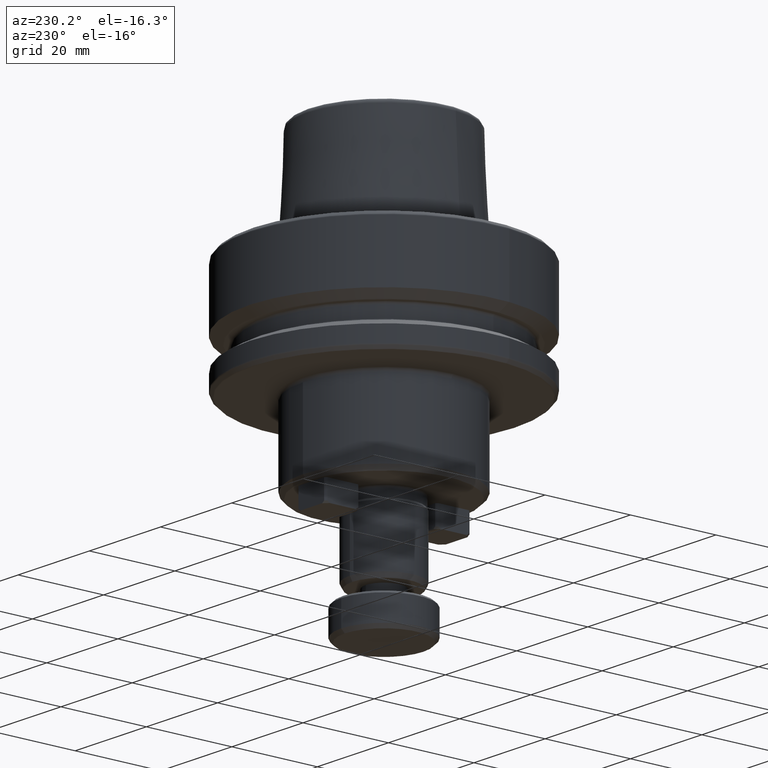
[diagram: clean part render]
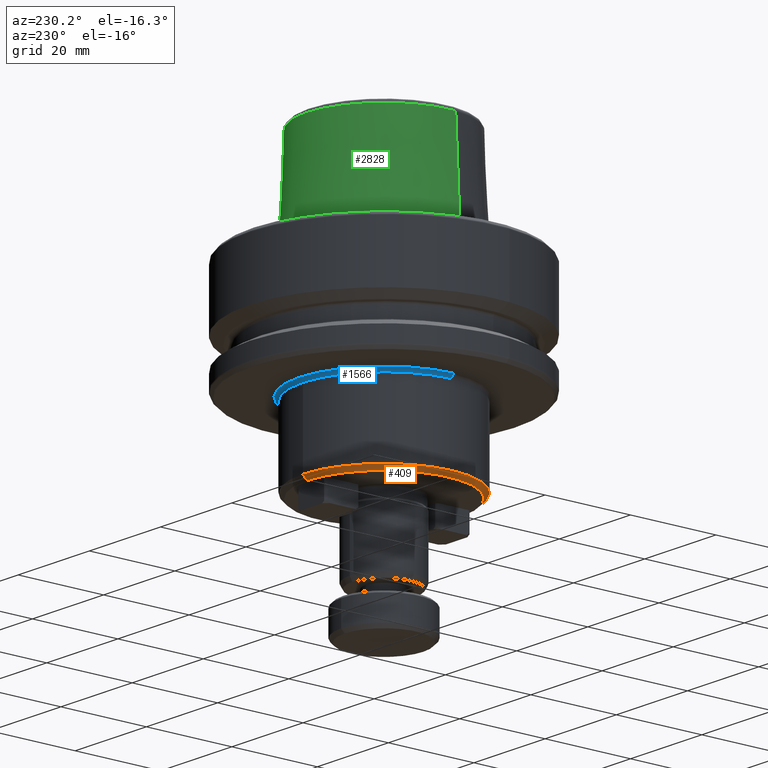
[diagram: same view with three faces highlighted in distinct colors, each labeled with its STEP entity id]
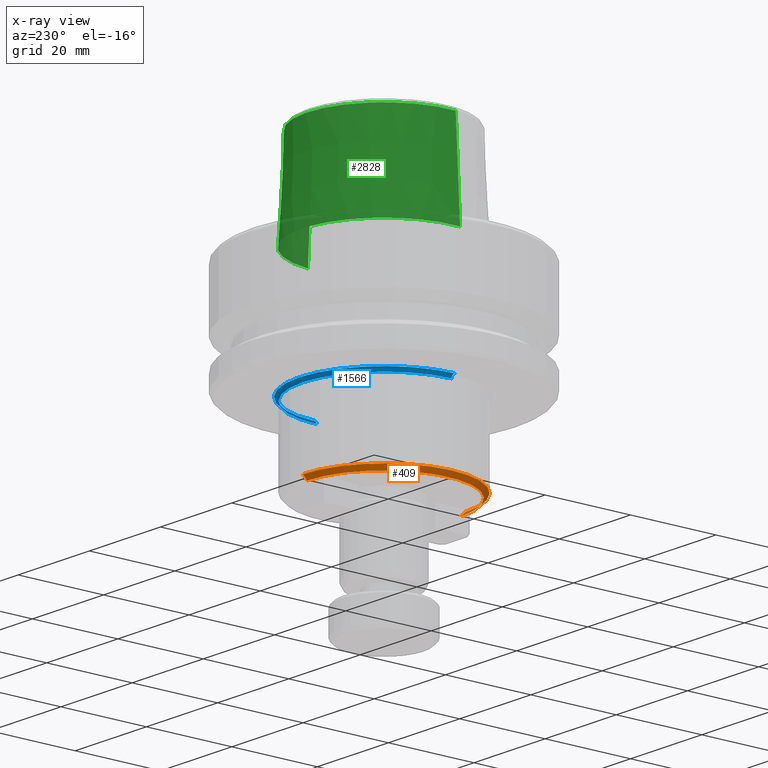
[diagram: x-ray of the same camera — body ghosted, the three highlighted faces saturated]
A machine part, auxiliary view with three faces highlighted in distinct colors.
The next image is the same camera in x-ray (body ghosted, the three faces saturated) — at least one of them is partly hidden behind the body in this view.
Their STEP definitions:

[orange] entity #409 — the highlighted conical surface has half-angle 45 deg.
#40 = DIRECTION ( 'NONE',  ( -0.0000000000000000000, -1.870988165364012400E-016, -1.000000000000000000 ) ) ;
#54 = ORIENTED_EDGE ( 'NONE', *, *, #2348, .F. ) ;
#124 = LINE ( 'NONE', #1850, #2440 ) ;
#357 = EDGE_CURVE ( 'NONE', #2397, #408, #645, .T. ) ;
#408 = VERTEX_POINT ( 'NONE', #2042 ) ;
#409 = ADVANCED_FACE ( 'NONE', ( #967 ), #1263, .T. ) ;
#410 = CIRCLE ( 'NONE', #737, 19.00000000000000700 ) ;
#496 = DIRECTION ( 'NONE',  ( 8.659560562354888500E-017, 0.7071067811865440200, 0.7071067811865511300 ) ) ;
#507 = EDGE_LOOP ( 'NONE', ( #54, #1658, #724, #1513 ) ) ;
#582 = CARTESIAN_POINT ( 'NONE',  ( -23.61709746719497700, 15.38612400801684800, 18.23824922329686200 ) ) ;
#645 = LINE ( 'NONE', #2778, #1324 ) ;
#658 = VERTEX_POINT ( 'NONE', #2298 ) ;
#724 = ORIENTED_EDGE ( 'NONE', *, *, #357, .T. ) ;
#737 = AXIS2_PLACEMENT_3D ( 'NONE', #1402, #40, #1623 ) ;
#792 = DIRECTION ( 'NONE',  ( 0.0000000000000000000, -1.000000000000000000, 1.927470528863118600E-016 ) ) ;
#892 = DIRECTION ( 'NONE',  ( -0.0000000000000000000, -1.870988165364012400E-016, -1.000000000000000000 ) ) ;
#967 = FACE_OUTER_BOUND ( 'NONE', #507, .T. ) ;
#1204 = EDGE_CURVE ( 'NONE', #408, #658, #410, .T. ) ;
#1263 = CONICAL_SURFACE ( 'NONE', #2149, 18.00000000000000400, 0.7853981633974430600 ) ;
#1324 = VECTOR ( 'NONE', #2489, 1000.000000000000000 ) ;
#1402 = CARTESIAN_POINT ( 'NONE',  ( -23.61709746719498100, -2.613875991983153600, 19.23824922329687900 ) ) ;
#1464 = VERTEX_POINT ( 'NONE', #582 ) ;
#1512 = CIRCLE ( 'NONE', #1893, 18.00000000000000400 ) ;
#1513 = ORIENTED_EDGE ( 'NONE', *, *, #1204, .T. ) ;
#1617 = EDGE_CURVE ( 'NONE', #2397, #1464, #1512, .T. ) ;
#1623 = DIRECTION ( 'NONE',  ( 0.0000000000000000000, 1.000000000000000000, -1.826024711554533200E-016 ) ) ;
#1652 = CARTESIAN_POINT ( 'NONE',  ( -23.61709746719498100, -20.61387599198315700, 18.23824922329686900 ) ) ;
#1658 = ORIENTED_EDGE ( 'NONE', *, *, #1617, .F. ) ;
#1850 = CARTESIAN_POINT ( 'NONE',  ( -23.61709746719497700, 15.38612400801684800, 18.23824922329686200 ) ) ;
#1893 = AXIS2_PLACEMENT_3D ( 'NONE', #2222, #892, #2449 ) ;
#2042 = CARTESIAN_POINT ( 'NONE',  ( -23.61709746719497700, -21.61387599198316100, 19.23824922329688300 ) ) ;
#2149 = AXIS2_PLACEMENT_3D ( 'NONE', #2175, #2344, #792 ) ;
#2175 = CARTESIAN_POINT ( 'NONE',  ( -23.61709746719498100, -2.613875991983153600, 18.23824922329686500 ) ) ;
#2222 = CARTESIAN_POINT ( 'NONE',  ( -23.61709746719498100, -2.613875991983153600, 18.23824922329686500 ) ) ;
#2298 = CARTESIAN_POINT ( 'NONE',  ( -23.61709746719498100, 16.38612400801685400, 19.23824922329687600 ) ) ;
#2344 = DIRECTION ( 'NONE',  ( 0.0000000000000000000, 1.870988165364012400E-016, 1.000000000000000000 ) ) ;
#2348 = EDGE_CURVE ( 'NONE', #1464, #658, #124, .T. ) ;
#2397 = VERTEX_POINT ( 'NONE', #1652 ) ;
#2440 = VECTOR ( 'NONE', #496, 999.9999999999998900 ) ;
#2449 = DIRECTION ( 'NONE',  ( 0.0000000000000000000, 1.000000000000000000, -1.927470528863118600E-016 ) ) ;
#2489 = DIRECTION ( 'NONE',  ( 0.0000000000000000000, -0.7071067811865436900, 0.7071067811865513500 ) ) ;
#2778 = CARTESIAN_POINT ( 'NONE',  ( -23.61709746719498100, -20.61387599198315700, 18.23824922329686900 ) ) ;

[blue] entity #1566 — the highlighted toroidal blend (fillet) surface has major radius 19.8 mm and minor (blend) radius 0.8 mm.
#9 = ORIENTED_EDGE ( 'NONE', *, *, #2051, .T. ) ;
#146 = EDGE_CURVE ( 'NONE', #1203, #2693, #532, .T. ) ;
#191 = CIRCLE ( 'NONE', #1618, 0.8000000000000020400 ) ;
#246 = CARTESIAN_POINT ( 'NONE',  ( -23.61709746719498100, -2.613875991983150000, 37.23824922329685400 ) ) ;
#379 = ORIENTED_EDGE ( 'NONE', *, *, #2605, .F. ) ;
#405 = DIRECTION ( 'NONE',  ( 1.000000000000000000, 0.0000000000000000000, 0.0000000000000000000 ) ) ;
#532 = CIRCLE ( 'NONE', #714, 19.80000000000000100 ) ;
#604 = DIRECTION ( 'NONE',  ( 0.0000000000000000000, 0.0000000000000000000, -1.000000000000000000 ) ) ;
#714 = AXIS2_PLACEMENT_3D ( 'NONE', #246, #2519, #2262 ) ;
#716 = CARTESIAN_POINT ( 'NONE',  ( -43.41709746719497800, -2.613875991983147400, 37.23824922329685400 ) ) ;
#730 = ORIENTED_EDGE ( 'NONE', *, *, #146, .T. ) ;
#734 = DIRECTION ( 'NONE',  ( 0.0000000000000000000, 0.0000000000000000000, -1.000000000000000000 ) ) ;
#1050 = CARTESIAN_POINT ( 'NONE',  ( -3.817097467194979100, -2.613875991983150000, 36.43824922329685700 ) ) ;
#1131 = DIRECTION ( 'NONE',  ( 1.224646799147353200E-016, 1.000000000000000000, 0.0000000000000000000 ) ) ;
#1154 = EDGE_LOOP ( 'NONE', ( #1810, #730, #9, #1332, #379 ) ) ;
#1203 = VERTEX_POINT ( 'NONE', #716 ) ;
#1219 = CIRCLE ( 'NONE', #1823, 19.00000000000000400 ) ;
#1272 = DIRECTION ( 'NONE',  ( 0.0000000000000000000, 0.0000000000000000000, -1.000000000000000000 ) ) ;
#1294 = AXIS2_PLACEMENT_3D ( 'NONE', #2647, #1762, #405 ) ;
#1332 = ORIENTED_EDGE ( 'NONE', *, *, #2312, .F. ) ;
#1396 = VERTEX_POINT ( 'NONE', #2579 ) ;
#1440 = CIRCLE ( 'NONE', #1630, 0.8000000000000020400 ) ;
#1566 = ADVANCED_FACE ( 'NONE', ( #1573 ), #1643, .F. ) ;
#1573 = FACE_OUTER_BOUND ( 'NONE', #1154, .T. ) ;
#1577 = AXIS2_PLACEMENT_3D ( 'NONE', #2072, #734, #2288 ) ;
#1618 = AXIS2_PLACEMENT_3D ( 'NONE', #2467, #1131, #2701 ) ;
#1630 = AXIS2_PLACEMENT_3D ( 'NONE', #1050, #2610, #1272 ) ;
#1643 = TOROIDAL_SURFACE ( 'NONE', #1294, 19.80000000000000100, 0.8000000000000000400 ) ;
#1762 = DIRECTION ( 'NONE',  ( -0.0000000000000000000, -0.0000000000000000000, 1.000000000000000000 ) ) ;
#1810 = ORIENTED_EDGE ( 'NONE', *, *, #2774, .F. ) ;
#1823 = AXIS2_PLACEMENT_3D ( 'NONE', #1954, #604, #2166 ) ;
#1910 = CARTESIAN_POINT ( 'NONE',  ( -23.61709746719498100, 16.38612400801685400, 36.43824922329685700 ) ) ;
#1954 = CARTESIAN_POINT ( 'NONE',  ( -23.61709746719498100, -2.613875991983150000, 36.43824922329685700 ) ) ;
#2006 = VERTEX_POINT ( 'NONE', #1910 ) ;
#2051 = EDGE_CURVE ( 'NONE', #2693, #2119, #1440, .T. ) ;
#2072 = CARTESIAN_POINT ( 'NONE',  ( -23.61709746719498100, -2.613875991983150000, 36.43824922329685700 ) ) ;
#2119 = VERTEX_POINT ( 'NONE', #2637 ) ;
#2166 = DIRECTION ( 'NONE',  ( 1.000000000000000000, 0.0000000000000000000, 0.0000000000000000000 ) ) ;
#2262 = DIRECTION ( 'NONE',  ( 1.000000000000000000, 0.0000000000000000000, 0.0000000000000000000 ) ) ;
#2288 = DIRECTION ( 'NONE',  ( 1.000000000000000000, 0.0000000000000000000, 0.0000000000000000000 ) ) ;
#2312 = EDGE_CURVE ( 'NONE', #2006, #2119, #2583, .T. ) ;
#2467 = CARTESIAN_POINT ( 'NONE',  ( -43.41709746719497800, -2.613875991983147400, 36.43824922329685700 ) ) ;
#2519 = DIRECTION ( 'NONE',  ( 0.0000000000000000000, 0.0000000000000000000, -1.000000000000000000 ) ) ;
#2579 = CARTESIAN_POINT ( 'NONE',  ( -42.61709746719498100, -2.613875991983147400, 36.43824922329685700 ) ) ;
#2583 = CIRCLE ( 'NONE', #1577, 19.00000000000000400 ) ;
#2605 = EDGE_CURVE ( 'NONE', #1396, #2006, #1219, .T. ) ;
#2610 = DIRECTION ( 'NONE',  ( 0.0000000000000000000, -1.000000000000000000, 0.0000000000000000000 ) ) ;
#2637 = CARTESIAN_POINT ( 'NONE',  ( -4.617097467194978000, -2.613875991983150000, 36.43824922329685700 ) ) ;
#2647 = CARTESIAN_POINT ( 'NONE',  ( -23.61709746719498100, -2.613875991983150000, 36.43824922329685700 ) ) ;
#2665 = CARTESIAN_POINT ( 'NONE',  ( -3.817097467194979100, -2.613875991983150000, 37.23824922329685400 ) ) ;
#2693 = VERTEX_POINT ( 'NONE', #2665 ) ;
#2701 = DIRECTION ( 'NONE',  ( -1.000000000000000000, 0.0000000000000000000, 0.0000000000000000000 ) ) ;
#2774 = EDGE_CURVE ( 'NONE', #1203, #1396, #191, .T. ) ;

[green] entity #2828 — the highlighted conical surface has half-angle 2.868 deg.
#16 = CARTESIAN_POINT ( 'NONE',  ( -23.61709746719498100, -2.613875991983149600, 87.18828533380995800 ) ) ;
#188 = EDGE_CURVE ( 'NONE', #2562, #235, #1071, .T. ) ;
#235 = VERTEX_POINT ( 'NONE', #955 ) ;
#358 = AXIS2_PLACEMENT_3D ( 'NONE', #2000, #649, #2219 ) ;
#465 = CIRCLE ( 'NONE', #358, 18.05562472032996300 ) ;
#474 = FACE_OUTER_BOUND ( 'NONE', #1651, .T. ) ;
#522 = ORIENTED_EDGE ( 'NONE', *, *, #188, .T. ) ;
#568 = CARTESIAN_POINT ( 'NONE',  ( -41.58092719451243400, -4.432228424636501400, 87.18828533380995800 ) ) ;
#628 = DIRECTION ( 'NONE',  ( 0.0000000000000000000, 0.0000000000000000000, 1.000000000000000000 ) ) ;
#649 = DIRECTION ( 'NONE',  ( 0.0000000000000000000, 0.0000000000000000000, 1.000000000000000000 ) ) ;
#820 = DIRECTION ( 'NONE',  ( 0.04978172638151104300, 0.005039054847522302600, -0.9987474093306675200 ) ) ;
#955 = CARTESIAN_POINT ( 'NONE',  ( -42.67500832204211700, -4.542974580103472000, 65.23824922329684700 ) ) ;
#1034 = CARTESIAN_POINT ( 'NONE',  ( -5.653267739877530400, -0.7955235593297955700, 87.18828533380995800 ) ) ;
#1046 = CARTESIAN_POINT ( 'NONE',  ( -5.653267739877530400, -0.7955235593297955700, 87.18828533380995800 ) ) ;
#1071 = CIRCLE ( 'NONE', #1619, 19.15529659164765200 ) ;
#1072 = VERTEX_POINT ( 'NONE', #2913 ) ;
#1160 = LINE ( 'NONE', #568, #1682 ) ;
#1465 = EDGE_CURVE ( 'NONE', #2581, #2562, #2588, .T. ) ;
#1593 = DIRECTION ( 'NONE',  ( -0.9949159890929082400, -0.1007083643362366900, 0.0000000000000000000 ) ) ;
#1619 = AXIS2_PLACEMENT_3D ( 'NONE', #1819, #628, #2366 ) ;
#1651 = EDGE_LOOP ( 'NONE', ( #2058, #2469, #522, #2330 ) ) ;
#1682 = VECTOR ( 'NONE', #2135, 1000.000000000000100 ) ;
#1693 = CONICAL_SURFACE ( 'NONE', #2060, 18.05562472032996300, 0.05005701257456006400 ) ;
#1819 = CARTESIAN_POINT ( 'NONE',  ( -23.61709746719498100, -2.613875991983149600, 65.23824922329684700 ) ) ;
#1996 = VECTOR ( 'NONE', #820, 1000.000000000000100 ) ;
#2000 = CARTESIAN_POINT ( 'NONE',  ( -23.61709746719498100, -2.613875991983149600, 87.18828533380995800 ) ) ;
#2001 = EDGE_CURVE ( 'NONE', #1072, #235, #1160, .T. ) ;
#2037 = DIRECTION ( 'NONE',  ( 0.0000000000000000000, 0.0000000000000000000, -1.000000000000000000 ) ) ;
#2058 = ORIENTED_EDGE ( 'NONE', *, *, #2199, .F. ) ;
#2060 = AXIS2_PLACEMENT_3D ( 'NONE', #16, #2037, #1593 ) ;
#2135 = DIRECTION ( 'NONE',  ( -0.04978172638151104300, -0.005039054847522297400, -0.9987474093306675200 ) ) ;
#2199 = EDGE_CURVE ( 'NONE', #2581, #1072, #465, .T. ) ;
#2219 = DIRECTION ( 'NONE',  ( 0.9949159890929082400, 0.1007083643362367000, 0.0000000000000000000 ) ) ;
#2330 = ORIENTED_EDGE ( 'NONE', *, *, #2001, .F. ) ;
#2366 = DIRECTION ( 'NONE',  ( 0.9949159890929082400, 0.1007083643362367000, 0.0000000000000000000 ) ) ;
#2469 = ORIENTED_EDGE ( 'NONE', *, *, #1465, .T. ) ;
#2562 = VERTEX_POINT ( 'NONE', #2598 ) ;
#2581 = VERTEX_POINT ( 'NONE', #1046 ) ;
#2588 = LINE ( 'NONE', #1034, #1996 ) ;
#2598 = CARTESIAN_POINT ( 'NONE',  ( -4.559186612347842200, -0.6847774038628248200, 65.23824922329684700 ) ) ;
#2828 = ADVANCED_FACE ( 'NONE', ( #474 ), #1693, .T. ) ;
#2913 = CARTESIAN_POINT ( 'NONE',  ( -41.58092719451243400, -4.432228424636501400, 87.18828533380995800 ) ) ;